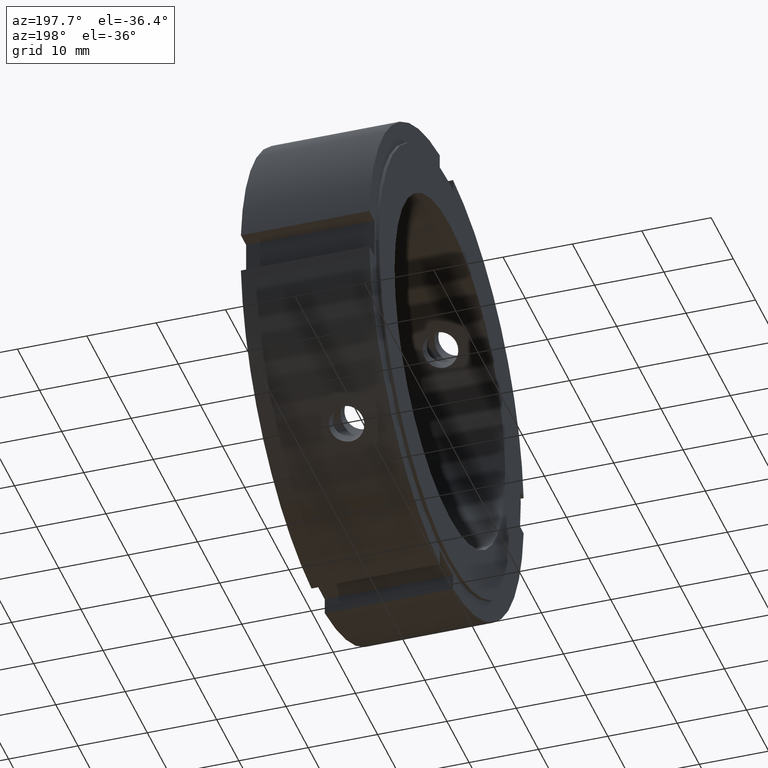
[diagram: clean part render]
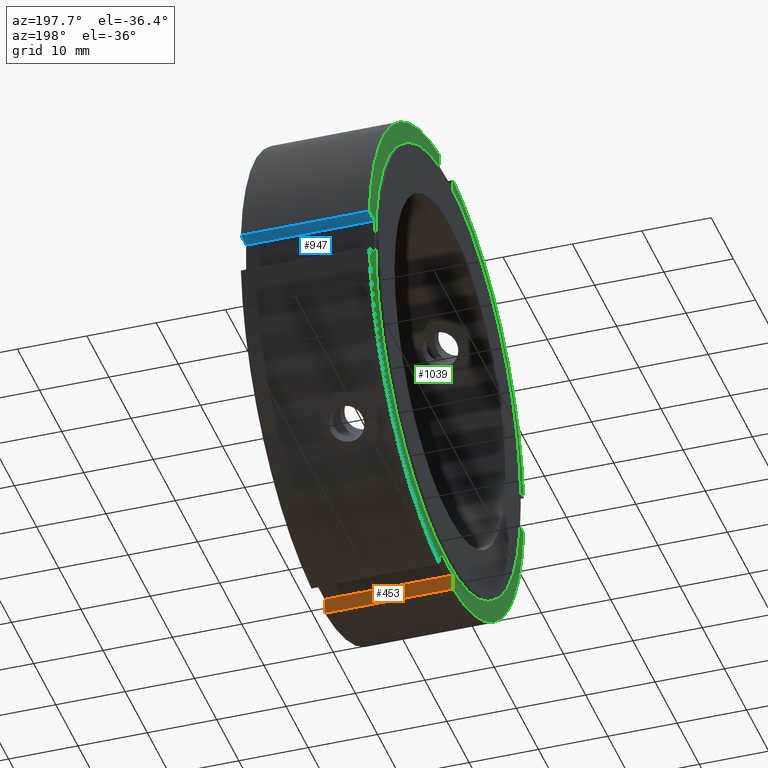
[diagram: same view with three faces highlighted in distinct colors, each labeled with its STEP entity id]
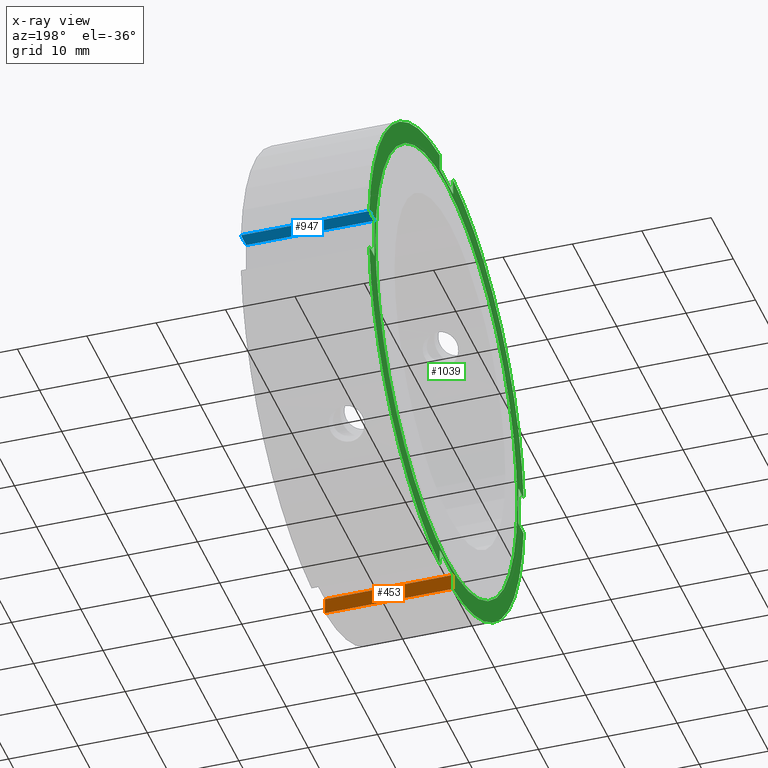
[diagram: x-ray of the same camera — body ghosted, the three highlighted faces saturated]
A machine part, auxiliary view with three faces highlighted in distinct colors.
The next image is the same camera in x-ray (body ghosted, the three faces saturated) — at least one of them is partly hidden behind the body in this view.
Their STEP definitions:

[orange] entity #453 — the highlighted planar face has unit normal (0, -1, 0).
#414=CARTESIAN_POINT('',(18.999999999999989,-3.000000000000004,-32.5));
#415=DIRECTION('',(0.0,-1.0,0.0));
#416=DIRECTION('',(-1.0,0.0,0.0));
#417=AXIS2_PLACEMENT_3D('',#414,#415,#416);
#418=PLANE('',#417);
#419=CARTESIAN_POINT('',(0.499999999999994,-3.000000000000004,-32.5));
#420=VERTEX_POINT('',#419);
#421=CARTESIAN_POINT('',(0.499999999999994,-3.000000000000006,-34.871191548325385));
#422=VERTEX_POINT('',#421);
#423=CARTESIAN_POINT('',(0.499999999999994,-3.000000000000003,-32.5));
#424=DIRECTION('',(0.0,0.0,-1.0));
#425=VECTOR('',#424,2.371191548325385);
#426=LINE('',#423,#425);
#427=EDGE_CURVE('',#420,#422,#426,.T.);
#428=ORIENTED_EDGE('',*,*,#427,.F.);
#429=CARTESIAN_POINT('',(18.999999999999989,-3.000000000000004,-32.5));
#430=VERTEX_POINT('',#429);
#431=CARTESIAN_POINT('',(18.999999999999989,-3.000000000000004,-32.5));
#432=DIRECTION('',(-1.0,0.0,0.0));
#433=VECTOR('',#432,18.499999999999996);
#434=LINE('',#431,#433);
#435=EDGE_CURVE('',#430,#420,#434,.T.);
#436=ORIENTED_EDGE('',*,*,#435,.F.);
#437=CARTESIAN_POINT('',(18.999999999999989,-3.000000000000005,-34.871191548325385));
#438=VERTEX_POINT('',#437);
#439=CARTESIAN_POINT('',(18.999999999999989,-3.000000000000004,-34.871191548325385));
#440=DIRECTION('',(0.0,0.0,1.0));
#441=VECTOR('',#440,2.371191548325385);
#442=LINE('',#439,#441);
#443=EDGE_CURVE('',#438,#430,#442,.T.);
#444=ORIENTED_EDGE('',*,*,#443,.F.);
#445=CARTESIAN_POINT('',(0.499999999999995,-3.000000000000005,-34.871191548325385));
#446=DIRECTION('',(1.0,0.0,0.0));
#447=VECTOR('',#446,18.5);
#448=LINE('',#445,#447);
#449=EDGE_CURVE('',#422,#438,#448,.T.);
#450=ORIENTED_EDGE('',*,*,#449,.F.);
#451=EDGE_LOOP('',(#428,#436,#444,#450));
#452=FACE_OUTER_BOUND('',#451,.T.);
#453=ADVANCED_FACE('',(#452),#418,.F.);

[blue] entity #947 — the highlighted planar face has unit normal (0, 0, 1).
#726=CARTESIAN_POINT('',(18.999999999999989,34.871191548325385,2.999999999999999));
#727=VERTEX_POINT('',#726);
#735=CARTESIAN_POINT('',(0.499999999999994,34.871191548325385,2.999999999999999));
#736=VERTEX_POINT('',#735);
#737=CARTESIAN_POINT('',(18.999999999999993,34.871191548325385,2.999999999999999));
#738=DIRECTION('',(-1.0,0.0,0.0));
#739=VECTOR('',#738,18.5);
#740=LINE('',#737,#739);
#741=EDGE_CURVE('',#727,#736,#740,.T.);
#857=CARTESIAN_POINT('',(18.999999999999989,32.5,2.999999999999998));
#858=VERTEX_POINT('',#857);
#865=CARTESIAN_POINT('',(18.999999999999989,32.5,2.999999999999998));
#866=DIRECTION('',(0.0,1.0,0.0));
#867=VECTOR('',#866,2.371191548325385);
#868=LINE('',#865,#867);
#869=EDGE_CURVE('',#858,#727,#868,.T.);
#924=CARTESIAN_POINT('',(18.999999999999989,35.0,2.999999999999999));
#925=DIRECTION('',(0.0,0.0,1.0));
#926=DIRECTION('',(1.0,0.0,0.0));
#927=AXIS2_PLACEMENT_3D('',#924,#925,#926);
#928=PLANE('',#927);
#929=CARTESIAN_POINT('',(0.499999999999994,32.5,2.999999999999998));
#930=VERTEX_POINT('',#929);
#931=CARTESIAN_POINT('',(0.499999999999994,34.871191548325385,2.999999999999998));
#932=DIRECTION('',(0.0,-1.0,0.0));
#933=VECTOR('',#932,2.371191548325385);
#934=LINE('',#931,#933);
#935=EDGE_CURVE('',#736,#930,#934,.T.);
#936=ORIENTED_EDGE('',*,*,#935,.F.);
#937=ORIENTED_EDGE('',*,*,#741,.F.);
#938=ORIENTED_EDGE('',*,*,#869,.F.);
#939=CARTESIAN_POINT('',(18.999999999999989,32.5,2.999999999999998));
#940=DIRECTION('',(-1.0,0.0,0.0));
#941=VECTOR('',#940,18.499999999999996);
#942=LINE('',#939,#941);
#943=EDGE_CURVE('',#858,#930,#942,.T.);
#944=ORIENTED_EDGE('',*,*,#943,.T.);
#945=EDGE_LOOP('',(#936,#937,#938,#944));
#946=FACE_OUTER_BOUND('',#945,.T.);
#947=ADVANCED_FACE('',(#946),#928,.F.);

[green] entity #1039 — the highlighted planar face has unit normal (-1, 0, 0).
#419=CARTESIAN_POINT('',(0.499999999999994,-3.000000000000004,-32.5));
#420=VERTEX_POINT('',#419);
#421=CARTESIAN_POINT('',(0.499999999999994,-3.000000000000006,-34.871191548325385));
#422=VERTEX_POINT('',#421);
#423=CARTESIAN_POINT('',(0.499999999999994,-3.000000000000003,-32.5));
#424=DIRECTION('',(0.0,0.0,-1.0));
#425=VECTOR('',#424,2.371191548325385);
#426=LINE('',#423,#425);
#427=EDGE_CURVE('',#420,#422,#426,.T.);
#459=CARTESIAN_POINT('',(0.499999999999994,2.999999999999992,-34.871191548325385));
#460=VERTEX_POINT('',#459);
#461=CARTESIAN_POINT('',(0.499999999999994,2.999999999999992,-32.5));
#462=VERTEX_POINT('',#461);
#463=CARTESIAN_POINT('',(0.499999999999994,2.999999999999995,-34.871191548325385));
#464=DIRECTION('',(0.0,0.0,1.0));
#465=VECTOR('',#464,2.371191548325385);
#466=LINE('',#463,#465);
#467=EDGE_CURVE('',#460,#462,#466,.T.);
#499=CARTESIAN_POINT('',(0.499999999999994,2.999999999999991,-32.5));
#500=DIRECTION('',(0.0,-1.0,0.0));
#501=VECTOR('',#500,5.999999999999995);
#502=LINE('',#499,#501);
#503=EDGE_CURVE('',#462,#420,#502,.T.);
#521=CARTESIAN_POINT('',(0.499999999999994,-32.5,3.000000000000003));
#522=VERTEX_POINT('',#521);
#523=CARTESIAN_POINT('',(0.499999999999994,-34.871191548325385,3.000000000000004));
#524=VERTEX_POINT('',#523);
#525=CARTESIAN_POINT('',(0.499999999999994,-32.5,3.000000000000003));
#526=DIRECTION('',(0.0,-1.0,0.0));
#527=VECTOR('',#526,2.371191548325378);
#528=LINE('',#525,#527);
#529=EDGE_CURVE('',#522,#524,#528,.T.);
#561=CARTESIAN_POINT('',(0.499999999999994,-34.871191548325385,-2.999999999999994));
#562=VERTEX_POINT('',#561);
#563=CARTESIAN_POINT('',(0.499999999999994,-32.5,-2.999999999999994));
#564=VERTEX_POINT('',#563);
#565=CARTESIAN_POINT('',(0.499999999999994,-34.871191548325378,-2.999999999999995));
#566=DIRECTION('',(0.0,1.0,0.0));
#567=VECTOR('',#566,2.371191548325378);
#568=LINE('',#565,#567);
#569=EDGE_CURVE('',#562,#564,#568,.T.);
#601=CARTESIAN_POINT('',(0.499999999999994,-32.5,-2.999999999999994));
#602=DIRECTION('',(0.0,0.0,1.0));
#603=VECTOR('',#602,5.999999999999996);
#604=LINE('',#601,#603);
#605=EDGE_CURVE('',#564,#522,#604,.T.);
#623=CARTESIAN_POINT('',(0.499999999999994,3.0,32.5));
#624=VERTEX_POINT('',#623);
#625=CARTESIAN_POINT('',(0.499999999999994,3.000000000000002,34.871191548325385));
#626=VERTEX_POINT('',#625);
#627=CARTESIAN_POINT('',(0.499999999999994,2.999999999999998,32.5));
#628=DIRECTION('',(0.0,0.0,1.0));
#629=VECTOR('',#628,2.371191548325385);
#630=LINE('',#627,#629);
#631=EDGE_CURVE('',#624,#626,#630,.T.);
#663=CARTESIAN_POINT('',(0.499999999999994,-2.999999999999996,34.871191548325385));
#664=VERTEX_POINT('',#663);
#665=CARTESIAN_POINT('',(0.499999999999994,-2.999999999999996,32.5));
#666=VERTEX_POINT('',#665);
#667=CARTESIAN_POINT('',(0.499999999999994,-2.999999999999999,34.871191548325385));
#668=DIRECTION('',(0.0,0.0,-1.0));
#669=VECTOR('',#668,2.371191548325385);
#670=LINE('',#667,#669);
#671=EDGE_CURVE('',#664,#666,#670,.T.);
#703=CARTESIAN_POINT('',(0.499999999999994,-2.999999999999996,32.5));
#704=DIRECTION('',(0.0,1.0,0.0));
#705=VECTOR('',#704,5.999999999999998);
#706=LINE('',#703,#705);
#707=EDGE_CURVE('',#666,#624,#706,.T.);
#735=CARTESIAN_POINT('',(0.499999999999994,34.871191548325385,2.999999999999999));
#736=VERTEX_POINT('',#735);
#743=CARTESIAN_POINT('',(0.499999999999994,0.0,0.0));
#744=DIRECTION('',(1.0,0.0,0.0));
#745=DIRECTION('',(0.0,1.0,0.0));
#746=AXIS2_PLACEMENT_3D('',#743,#744,#745);
#747=CIRCLE('',#746,34.999999999999993);
#748=EDGE_CURVE('',#736,#626,#747,.T.);
#767=CARTESIAN_POINT('',(0.499999999999994,0.0,0.0));
#768=DIRECTION('',(1.0,0.0,0.0));
#769=DIRECTION('',(0.0,1.0,0.0));
#770=AXIS2_PLACEMENT_3D('',#767,#768,#769);
#771=CIRCLE('',#770,34.999999999999993);
#772=EDGE_CURVE('',#664,#524,#771,.T.);
#786=CARTESIAN_POINT('',(0.499999999999994,34.871191548325385,-2.999999999999999));
#787=VERTEX_POINT('',#786);
#788=CARTESIAN_POINT('',(0.499999999999994,0.0,0.0));
#789=DIRECTION('',(1.0,0.0,0.0));
#790=DIRECTION('',(0.0,1.0,0.0));
#791=AXIS2_PLACEMENT_3D('',#788,#789,#790);
#792=CIRCLE('',#791,34.999999999999993);
#793=EDGE_CURVE('',#460,#787,#792,.T.);
#830=CARTESIAN_POINT('',(0.499999999999994,0.0,0.0));
#831=DIRECTION('',(1.0,0.0,0.0));
#832=DIRECTION('',(0.0,1.0,0.0));
#833=AXIS2_PLACEMENT_3D('',#830,#831,#832);
#834=CIRCLE('',#833,34.999999999999993);
#835=EDGE_CURVE('',#562,#422,#834,.T.);
#905=CARTESIAN_POINT('',(0.499999999999994,32.5,-2.999999999999998));
#906=VERTEX_POINT('',#905);
#907=CARTESIAN_POINT('',(0.499999999999994,32.5,-2.999999999999998));
#908=DIRECTION('',(0.0,1.0,0.0));
#909=VECTOR('',#908,2.371191548325385);
#910=LINE('',#907,#909);
#911=EDGE_CURVE('',#906,#787,#910,.T.);
#929=CARTESIAN_POINT('',(0.499999999999994,32.5,2.999999999999998));
#930=VERTEX_POINT('',#929);
#931=CARTESIAN_POINT('',(0.499999999999994,34.871191548325385,2.999999999999998));
#932=DIRECTION('',(0.0,-1.0,0.0));
#933=VECTOR('',#932,2.371191548325385);
#934=LINE('',#931,#933);
#935=EDGE_CURVE('',#736,#930,#934,.T.);
#953=CARTESIAN_POINT('',(0.499999999999994,32.5,2.999999999999998));
#954=DIRECTION('',(0.0,0.0,-1.0));
#955=VECTOR('',#954,5.999999999999996);
#956=LINE('',#953,#955);
#957=EDGE_CURVE('',#930,#906,#956,.T.);
#998=CARTESIAN_POINT('',(0.499999999999994,31.999999999999996,0.0));
#999=VERTEX_POINT('',#998);
#1000=CARTESIAN_POINT('',(0.499999999999994,0.0,0.0));
#1001=DIRECTION('',(1.0,0.0,0.0));
#1002=DIRECTION('',(0.0,1.0,0.0));
#1003=AXIS2_PLACEMENT_3D('',#1000,#1001,#1002);
#1004=CIRCLE('',#1003,31.999999999999996);
#1005=EDGE_CURVE('',#999,#999,#1004,.T.);
#1013=CARTESIAN_POINT('',(0.499999999999994,33.5,0.0));
#1014=DIRECTION('',(-1.0,0.0,0.0));
#1015=DIRECTION('',(0.0,0.0,1.0));
#1016=AXIS2_PLACEMENT_3D('',#1013,#1014,#1015);
#1017=PLANE('',#1016);
#1018=ORIENTED_EDGE('',*,*,#427,.T.);
#1019=ORIENTED_EDGE('',*,*,#835,.F.);
#1020=ORIENTED_EDGE('',*,*,#569,.T.);
#1021=ORIENTED_EDGE('',*,*,#605,.T.);
#1022=ORIENTED_EDGE('',*,*,#529,.T.);
#1023=ORIENTED_EDGE('',*,*,#772,.F.);
#1024=ORIENTED_EDGE('',*,*,#671,.T.);
#1025=ORIENTED_EDGE('',*,*,#707,.T.);
#1026=ORIENTED_EDGE('',*,*,#631,.T.);
#1027=ORIENTED_EDGE('',*,*,#748,.F.);
#1028=ORIENTED_EDGE('',*,*,#935,.T.);
#1029=ORIENTED_EDGE('',*,*,#957,.T.);
#1030=ORIENTED_EDGE('',*,*,#911,.T.);
#1031=ORIENTED_EDGE('',*,*,#793,.F.);
#1032=ORIENTED_EDGE('',*,*,#467,.T.);
#1033=ORIENTED_EDGE('',*,*,#503,.T.);
#1034=EDGE_LOOP('',(#1018,#1019,#1020,#1021,#1022,#1023,#1024,#1025,#1026,#1027,#1028,#1029,#1030,#1031,#1032,#1033));
#1035=FACE_OUTER_BOUND('',#1034,.T.);
#1036=ORIENTED_EDGE('',*,*,#1005,.T.);
#1037=EDGE_LOOP('',(#1036));
#1038=FACE_BOUND('',#1037,.T.);
#1039=ADVANCED_FACE('',(#1035,#1038),#1017,.T.);